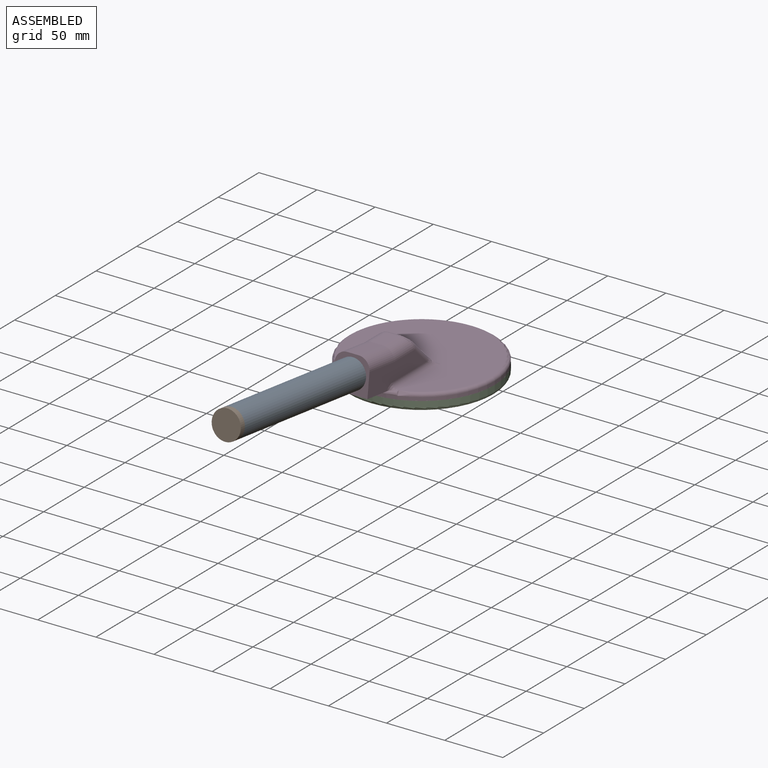
[diagram: assembled view]
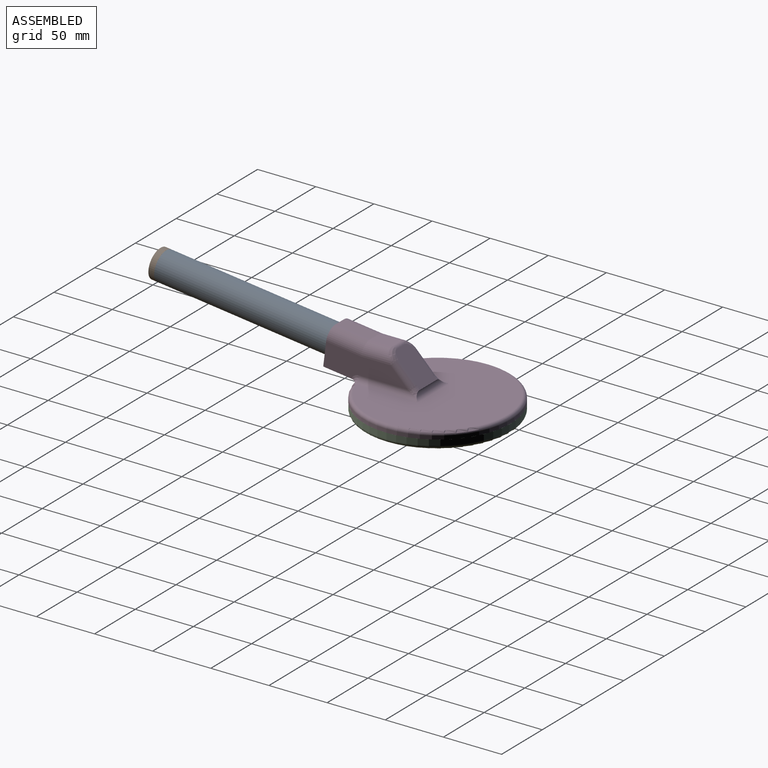
[diagram: assembled view, second angle]
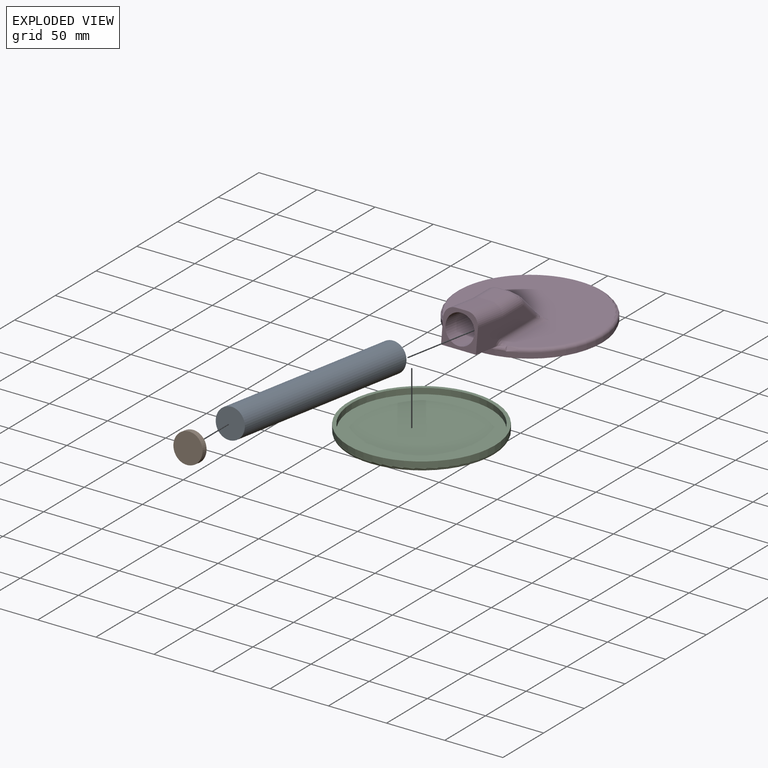
[diagram: exploded view]
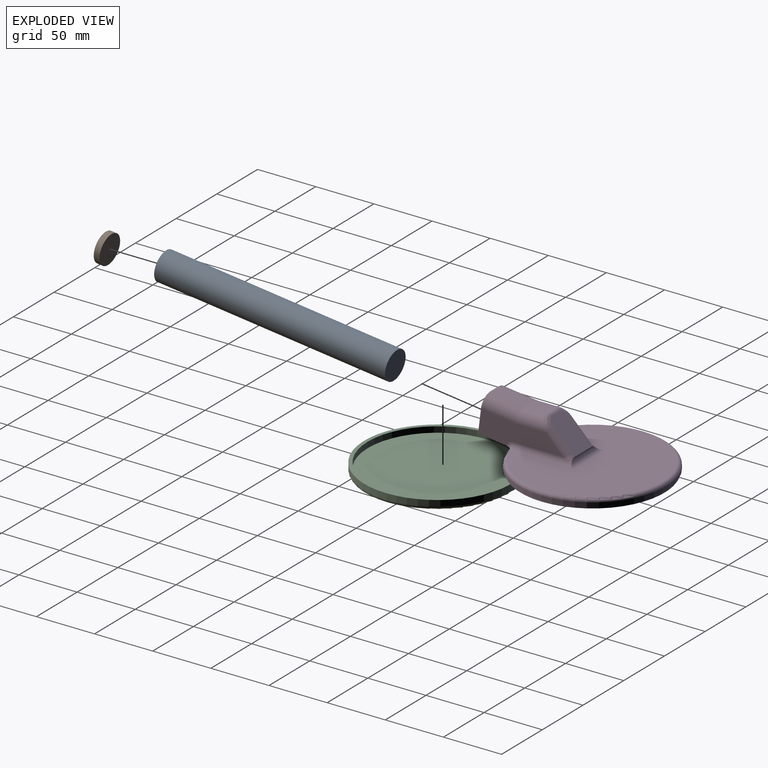
[diagram: exploded view, second angle]
ASSEMBLY  parts=4 mates=3
PART A: 3 faces, bbox 25x25x200 mm
  f0: plane 25x25mm, normal (0,0,-1), area 490.9mm2, adj f2
  f1: plane 25x25mm, normal (0,0,1), area 490.9mm2, adj f2
  f2: cylinder r=12.5mm len=200mm, axis (0,0,1), area 15708mm2, adj f0,f1
PART B: 3 faces, bbox 25x25x5 mm
  f0: cylinder r=12.5mm len=25mm, axis (0,0,-1), area 392.7mm2, adj f1,f2
  f1: plane 25x25mm, normal (0,0,1), area 490.9mm2, adj f0
  f2: plane 25x25mm, normal (0,0,-1), area 490.9mm2, adj f0
PART C: 6 faces, bbox 136.4x136.4x8 mm
  f0: cylinder r=63mm len=126mm, axis (0,0,-1), area 1979.2mm2, adj f1,f3
  f1: plane 126x126mm, normal (0,0,1), area 1159.2mm2, adj f0,f4
  f2: plane 120x120mm, normal (0,0,-1), area 11309.7mm2, adj f3
  f3: torus R=60mm, axis (0,0,1), area 1833.1mm2, adj f0,f2
  f4: cylinder r=60mm len=120mm, axis (0,0,-1), area 1885mm2, adj f1,f5
  f5: plane 120x120mm, normal (0,0,1), area 11309.7mm2, adj f4
PART D: 34 faces, bbox 137.3x156.9x42.5 mm
  f0: plane 120.88x117.45mm, normal (0,0,1), area 9085.3mm2, adj f3,f24,f25,f26,f27,f32
  f1: plane 30x1.91mm, normal (0,0,1), area 38.2mm2, adj f3,f14
  f2: cylinder r=63mm len=126mm, axis (0,0,-1), area 1187.5mm2, adj f3,f5
  f3: torus R=60mm, axis (0,0,1), area 1829.4mm2, adj f0,f1,f2,f14,f22,f23
  f4: cylinder r=62mm len=124mm, axis (0,0,-1), area 779.1mm2, adj f5,f8
  f5: plane 126x126mm, normal (0,0,-1), area 392.7mm2, adj f2,f4
  f6: plane 120x120mm, normal (0,0,-1), area 11309.7mm2, adj f7
  f7: cylinder r=60mm len=120mm, axis (0,0,-1), area 1885mm2, adj f6,f8
  f8: plane 124x124mm, normal (0,0,-1), area 766.5mm2, adj f4,f7
  f9: plane 72.71x23.01mm, normal (1,0,0), area 1095.3mm2, adj f14,f15,f18,f19,f22,f24,f28
  f10: plane 72.71x23.01mm, normal (-1,0,0), area 1095.3mm2, adj f14,f15,f20,f21,f23,f25,f33
  f11: plane 19.25x10mm, normal (0,0,1), area 192.5mm2, adj f13,f18,f20,f30
  f12: plane 23.54x23.54mm, normal (0,0.71,0.71), area 652.6mm2, adj f26,f27,f28,f29,f30,f31,f32,f33
  f13: plane 29.78x10mm, normal (0,0.12,0.99), area 300mm2, adj f11,f15,f19,f21
  f14: plane 39.38x30.56mm, normal (0,-0.12,-0.99), area 914mm2, adj f1,f3,f9,f10,f15,f22,f23
  f15: plane 30x30mm, normal (0,-0.99,0.12), area 373mm2, adj f9,f10,f13,f14,f17,f19,f21
  f16: plane 25x24.81mm, normal (0,-0.99,0.12), area 490.9mm2, adj f17
  f17: cylinder r=12.5mm len=52.67mm, axis (0,-0.99,0.12), area 3927mm2, adj f15,f16
  f18: cylinder r=10mm len=24.86mm, axis (0,-1,0), area 346.4mm2, adj f9,f11,f19,f29
  f19: cylinder r=10mm len=31.6mm, axis (0,-0.99,0.12), area 476mm2, adj f9,f13,f15,f18
  f20: cylinder r=10mm len=24.86mm, axis (0,1,0), area 346.4mm2, adj f10,f11,f21,f31
  f21: cylinder r=10mm len=31.6mm, axis (0,0.99,-0.12), area 476mm2, adj f10,f13,f15,f20
  f22: bspline ~9.37x7.16mm, area 31.9mm2, adj f3,f9,f14,f24
  f23: bspline ~9.37x7.16mm, area 31.9mm2, adj f3,f10,f14,f25
  f24: cylinder r=5mm len=51.4mm, axis (0,1,0), area 364.4mm2, adj f0,f9,f22,f27
  f25: cylinder r=5mm len=51.4mm, axis (0,-1,0), area 364.4mm2, adj f0,f10,f23,f32
  f26: cylinder r=5mm len=36.27mm, axis (-1,0,0), area 248.9mm2, adj f0,f12,f27,f32
  f27: bspline ~13.54x10mm, area 49.7mm2, adj f0,f12,f24,f26,f28
  f28: cylinder r=5mm len=18.54mm, axis (0,0.71,-0.71), area 166.6mm2, adj f9,f12,f27,f29
  f29: bspline ~11.74x10.51mm, area 73mm2, adj f12,f18,f28,f30
  f30: cylinder r=5mm len=10mm, axis (-1,0,0), area 39.3mm2, adj f11,f12,f29,f31
  f31: bspline ~10x10mm, area 73mm2, adj f12,f20,f30,f33
  f32: bspline ~15.27x11.74mm, area 49.6mm2, adj f0,f12,f25,f26,f33
  f33: cylinder r=5mm len=18.54mm, axis (0,0.71,-0.71), area 166.6mm2, adj f10,f12,f31,f32
PLACE A rot(axis=(1,0,0),83deg) t=(0.01,-36.42,22.53)mm
PLACE B rot(axis=(-1,0,0),97deg) t=(0.01,-239.89,47.51)mm
PLACE C t=(0.01,-0.02,-4.03)mm
PLACE D t=(0.01,-0.02,1.97)mm
MATE fastened A.f2 <-> D.f17  axis (0,0.99,-0.12) through (0.01,-36.42,22.53)mm
MATE fastened B.f0 <-> A.f2  axis (0,0.99,-0.12) through (0.01,-234.93,46.91)mm
MATE fastened D.f2 <-> C.f0  axis (0,0,-1) through (0.01,-0.02,3.97)mm
